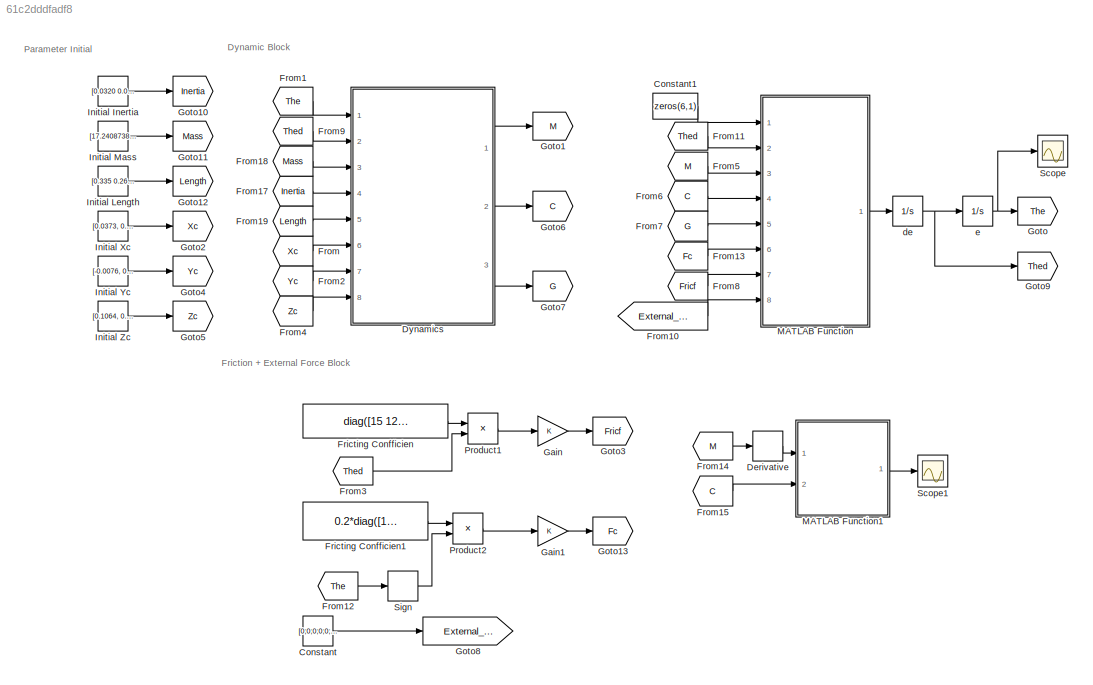
MODEL slx_61c2dddfadf8
KIND model
CONFIG AbsTol = auto
CONFIG EnableMultiTasking = off
CONFIG FixedStep = 0.01
CONFIG MaxStep = auto
CONFIG MinStep = auto
CONFIG RelTol = 1e-3
CONFIG SampleTimeConstraint = Unconstrained
CONFIG Solver = ode3
CONFIG SolverName = ode3
CONFIG StartTime = 0.0
CONFIG StopTime = 50
BLOCK [Constant] Constant
  Value = [0;0;0;0;0;0]
BLOCK [Constant] Constant1
  Value = zeros(6,1)
BLOCK [Derivative] Derivative
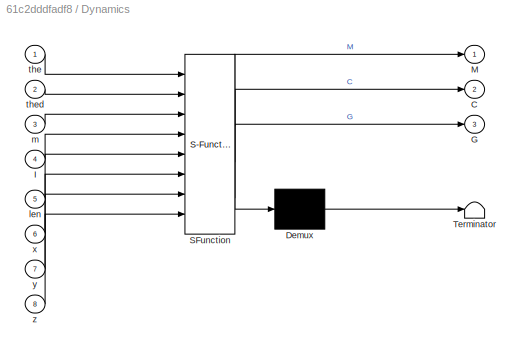
BLOCK [SubSystem] Dynamics
  ErrorFcn = Stateflow.Translate.translate
  PermitHierarchicalResolution = ExplicitOnly
  Ports = [8, 3]
  RequestExecContextInheritance = off
  SFBlockType = MATLAB Function
  TreatAsAtomicUnit = on
BLOCK [Demux] Dynamics/ Demux 
  Outputs = 1
  Ports = [1, 1]
BLOCK [S-Function] Dynamics/ SFunction 
  EnableBusSupport = on
  FunctionName = sf_sfun
  PortCounts = [8 4]
  Ports = [8, 4]
  SFcnIsStateOwnerBlock = off
  SFunctionDeploymentMode = off
  Tag = Stateflow S-Function DYN_6DOF 2
BLOCK [Terminator] Dynamics/ Terminator 
BLOCK [Outport] Dynamics/C
  IconDisplay = Port number
  Port = 2
BLOCK [Outport] Dynamics/G
  IconDisplay = Port number
  Port = 3
BLOCK [Inport] Dynamics/I
  IconDisplay = Port number
  Port = 4
BLOCK [Outport] Dynamics/M
  IconDisplay = Port number
BLOCK [Inport] Dynamics/len
  IconDisplay = Port number
  Port = 5
BLOCK [Inport] Dynamics/m
  IconDisplay = Port number
  Port = 3
BLOCK [Inport] Dynamics/the
  IconDisplay = Port number
BLOCK [Inport] Dynamics/thed
  IconDisplay = Port number
  Port = 2
BLOCK [Inport] Dynamics/x
  IconDisplay = Port number
  Port = 6
BLOCK [Inport] Dynamics/y
  IconDisplay = Port number
  Port = 7
BLOCK [Inport] Dynamics/z
  IconDisplay = Port number
  Port = 8
BLOCK [Constant] Fricting Confficien
  Value = diag([15 12 10 0.5 0.08 0.05])
BLOCK [Constant] Fricting Confficien1
  Value = 0.2*diag([1 1 1 1 1 1])
BLOCK [From] From
  GotoTag = Xc
BLOCK [From] From1
  GotoTag = The
BLOCK [From] From10
  GotoTag = External_Force
BLOCK [From] From11
  GotoTag = Thed
BLOCK [From] From12
  GotoTag = The
BLOCK [From] From13
  GotoTag = Fc
BLOCK [From] From14
  GotoTag = M
BLOCK [From] From15
  GotoTag = C
BLOCK [From] From17
  GotoTag = Inertia
BLOCK [From] From18
  GotoTag = Mass
BLOCK [From] From19
  GotoTag = Length
BLOCK [From] From2
  GotoTag = Yc
BLOCK [From] From3
  GotoTag = Thed
BLOCK [From] From4
  GotoTag = Zc
BLOCK [From] From5
  GotoTag = M
BLOCK [From] From6
  GotoTag = C
BLOCK [From] From7
  GotoTag = G
BLOCK [From] From8
  GotoTag = Fricf
BLOCK [From] From9
  GotoTag = Thed
BLOCK [Gain] Gain
  OutDataTypeStr = Inherit: Inherit via internal rule
  ParamDataTypeStr = Inherit: Inherit via internal rule
  SaturateOnIntegerOverflow = off
BLOCK [Gain] Gain1
  OutDataTypeStr = Inherit: Inherit via internal rule
  ParamDataTypeStr = Inherit: Inherit via internal rule
  SaturateOnIntegerOverflow = off
BLOCK [Goto] Goto
  GotoTag = The
BLOCK [Goto] Goto1
  GotoTag = M
BLOCK [Goto] Goto10
  GotoTag = Inertia
BLOCK [Goto] Goto11
  GotoTag = Mass
BLOCK [Goto] Goto12
  GotoTag = Length
BLOCK [Goto] Goto13
  GotoTag = Fc
BLOCK [Goto] Goto2
  GotoTag = Xc
BLOCK [Goto] Goto3
  GotoTag = Fricf
BLOCK [Goto] Goto4
  GotoTag = Yc
BLOCK [Goto] Goto5
  GotoTag = Zc
BLOCK [Goto] Goto6
  GotoTag = C
BLOCK [Goto] Goto7
  GotoTag = G
BLOCK [Goto] Goto8
  GotoTag = External_Force
BLOCK [Goto] Goto9
  GotoTag = Thed
BLOCK [Constant] Initial Inertia
  Value = [0.0320 0.0364 0.0334 0.0017 0.0018 -0.0093;\n0.0099, 0.0646, 0.0684, -0.0008, -0.0002, 0.0002; 0.0176, 0.0195, 0.024, -0.001, -0.0002, -0.0007;\n0.009 0.0081 0.0037 0 -0.0002 0;\n0.0003 0.0002 0.0003 0 0 0;\n0.00002 0.0002 0.0003 0 0 0]
BLOCK [Constant] Initial Length
  Value = [0.335 0.2695 0.0905 0.298 0.0585 0.0215 0.0695]
BLOCK [Constant] Initial Mass
  Value = [17.240873802220893 7.3398762571691067 9.1010917011561592 5.3254595389331039 1.2978324047771284 0.54]
BLOCK [Constant] Initial Xc
  Value = [0.0373, 0.1127,0.0447,0.0006,0,-0.00001]'
BLOCK [Constant] Initial Yc
  Value = [-0.0076, 0.0065, 0.0125,0.0052,0.0062,0.00001]'
BLOCK [Constant] Initial Zc
  Value = [0.1064, 0.0648, -0.0554, 0.1068, 0.0195,0.01126]'
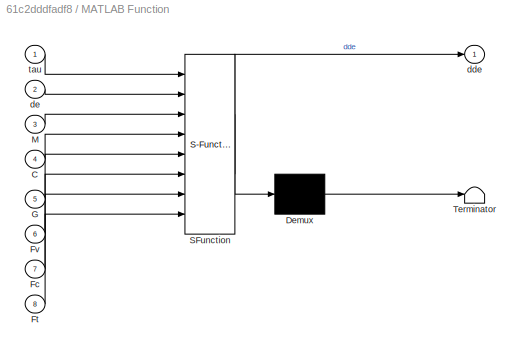
BLOCK [SubSystem] MATLAB Function
  ErrorFcn = Stateflow.Translate.translate
  PermitHierarchicalResolution = ExplicitOnly
  Ports = [8, 1]
  RequestExecContextInheritance = off
  SFBlockType = MATLAB Function
  TreatAsAtomicUnit = on
BLOCK [Demux] MATLAB Function/ Demux 
  Outputs = 1
  Ports = [1, 1]
BLOCK [S-Function] MATLAB Function/ SFunction 
  EnableBusSupport = on
  FunctionName = sf_sfun
  PortCounts = [8 2]
  Ports = [8, 2]
  SFcnIsStateOwnerBlock = off
  SFunctionDeploymentMode = off
  Tag = Stateflow S-Function DYN_6DOF 1
BLOCK [Terminator] MATLAB Function/ Terminator 
BLOCK [Inport] MATLAB Function/C
  IconDisplay = Port number
  Port = 4
BLOCK [Inport] MATLAB Function/Fc
  IconDisplay = Port number
  Port = 7
BLOCK [Inport] MATLAB Function/Ft
  IconDisplay = Port number
  Port = 8
BLOCK [Inport] MATLAB Function/Fv
  IconDisplay = Port number
  Port = 6
BLOCK [Inport] MATLAB Function/G
  IconDisplay = Port number
  Port = 5
BLOCK [Inport] MATLAB Function/M
  IconDisplay = Port number
  Port = 3
BLOCK [Outport] MATLAB Function/dde
  IconDisplay = Port number
BLOCK [Inport] MATLAB Function/de
  IconDisplay = Port number
  Port = 2
BLOCK [Inport] MATLAB Function/tau
  IconDisplay = Port number
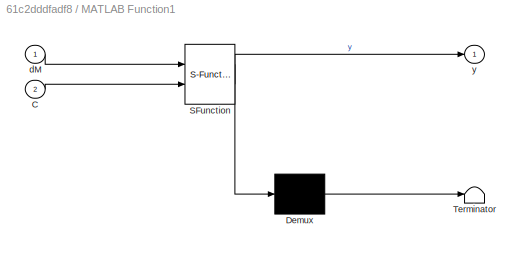
BLOCK [SubSystem] MATLAB Function1
  ErrorFcn = Stateflow.Translate.translate
  PermitHierarchicalResolution = ExplicitOnly
  Ports = [2, 1]
  RequestExecContextInheritance = off
  SFBlockType = MATLAB Function
  TreatAsAtomicUnit = on
BLOCK [Demux] MATLAB Function1/ Demux 
  Outputs = 1
  Ports = [1, 1]
BLOCK [S-Function] MATLAB Function1/ SFunction 
  EnableBusSupport = on
  FunctionName = sf_sfun
  PortCounts = [2 2]
  Ports = [2, 2]
  SFcnIsStateOwnerBlock = off
  SFunctionDeploymentMode = off
  Tag = Stateflow S-Function DYN_6DOF 3
BLOCK [Terminator] MATLAB Function1/ Terminator 
BLOCK [Inport] MATLAB Function1/C
  IconDisplay = Port number
  Port = 2
BLOCK [Inport] MATLAB Function1/dM
  IconDisplay = Port number
BLOCK [Outport] MATLAB Function1/y
  IconDisplay = Port number
BLOCK [Product] Product1
  InputSameDT = off
  Multiplication = Matrix(*)
  OutDataTypeStr = Inherit: Inherit via internal rule
  Ports = [2, 1]
  RndMeth = Floor
  SaturateOnIntegerOverflow = off
BLOCK [Product] Product2
  InputSameDT = off
  Multiplication = Matrix(*)
  OutDataTypeStr = Inherit: Inherit via internal rule
  Ports = [2, 1]
  RndMeth = Floor
  SaturateOnIntegerOverflow = off
BLOCK [Scope] Scope
  Floating = off
  NumInputPorts = 1
  Ports = [1]
  ScopeSpecificationString = Simulink.scopes.TimeScopeBlockCfg('CurrentConfiguration', extmgr.ConfigurationSet(extmgr.Configuration('Core','General UI',true,'FigureColor',[1 1 1]),extmgr.Configuration('Core','Source UI',true),extmgr.Configuration('Sources','WiredSimulink',true),extmgr.Configuration('Visuals','Time Domain',true,'SerializedDisplays',{struct('MinYLimReal','-1.8326','MaxYLimReal','0.7854','YLabelReal','','MinYLim...<+1980ch>
BLOCK [Scope] Scope1
  Floating = off
  NumInputPorts = 1
  Ports = [1]
  ScopeSpecificationString = Simulink.scopes.TimeScopeBlockCfg('CurrentConfiguration', extmgr.ConfigurationSet(extmgr.Configuration('Core','General UI',true),extmgr.Configuration('Core','Source UI',true),extmgr.Configuration('Sources','WiredSimulink',true,'DataLoggingVariableName','ScopeData1'),extmgr.Configuration('Visuals','Time Domain',true,'SerializedDisplays',{struct('MinYLimReal','-11.14276','MaxYLimReal','10.59625','YL...<+1455ch>
BLOCK [Signum] Sign
BLOCK [Integrator] de
  IgnoreLimit = on
  InitialCondition = zeros(6,1)
  Ports = [1, 1]
BLOCK [Integrator] e
  InitialCondition = [0.0001;pi/6;0.0001;0.0001;0.0001;0.0001]
  LimitOutput = on
  LowerSaturationLimit = -[170;90;90;120;60;180]*pi/180
  Ports = [1, 1]
  UpperSaturationLimit = [170;90;90;120;60;180]*pi/180
ANNOTATION (root): Dynamic Block
ANNOTATION (root): Friction + External Force Block
ANNOTATION (root): Parameter Initial
LINE Constant1:1 -> MATLAB Function:1
LINE Constant:1 -> Goto8:1
LINE Derivative:1 -> MATLAB Function1:1
LINE Dynamics:1 -> Goto1:1
LINE Dynamics:2 -> Goto6:1
LINE Dynamics:3 -> Goto7:1
LINE Fricting Confficien1:1 -> Product2:1
LINE Fricting Confficien:1 -> Product1:1
LINE From10:1 -> MATLAB Function:8
LINE From11:1 -> MATLAB Function:2
LINE From12:1 -> Sign:1
LINE From13:1 -> MATLAB Function:6
LINE From14:1 -> Derivative:1
LINE From15:1 -> MATLAB Function1:2
LINE From17:1 -> Dynamics:4
LINE From18:1 -> Dynamics:3
LINE From19:1 -> Dynamics:5
LINE From1:1 -> Dynamics:1
LINE From2:1 -> Dynamics:7
LINE From3:1 -> Product1:2
LINE From4:1 -> Dynamics:8
LINE From5:1 -> MATLAB Function:3
LINE From6:1 -> MATLAB Function:4
LINE From7:1 -> MATLAB Function:5
LINE From8:1 -> MATLAB Function:7
LINE From9:1 -> Dynamics:2
LINE From:1 -> Dynamics:6
LINE Gain1:1 -> Goto13:1
LINE Gain:1 -> Goto3:1
LINE Initial Inertia:1 -> Goto10:1
LINE Initial Length:1 -> Goto12:1
LINE Initial Mass:1 -> Goto11:1
LINE Initial Xc:1 -> Goto2:1
LINE Initial Yc:1 -> Goto4:1
LINE Initial Zc:1 -> Goto5:1
LINE MATLAB Function1:1 -> Scope1:1
LINE MATLAB Function:1 -> de:1
LINE Product1:1 -> Gain:1
LINE Product2:1 -> Gain1:1
LINE Sign:1 -> Product2:2
NET de:1 -> Goto9:1, e:1
NET e:1 -> Goto:1, Scope:1
note: NET lines group one-source signal fan-out (src -> all destinations, sorted); 1:1 wires keep LINE
CHART MATLAB Function states=1 transitions=1
  STATE_LABEL 'eML_blk_kernel()'
  STATE_LABEL 'SCRIPT:\nfunction dde= fcn(tau,de,M,C,G,Fv,Fc,Ft)\nJ = zeros(6);\n\ndde = inv(M)*(tau - C*de - G - Fv - Fc - transpose(J)*Ft);\n'
CHART Dynamics states=1 transitions=1
  STATE_LABEL 'eML_blk_kernel()'
  STATE_LABEL 'SCRIPT:\nfunction [M,C,G] = fcn(the, thed, m, I, len,x,y,z)\nthe1 = the(1); the2 = the(2); the3 = the(3);\nthe4 = the(4); the5 = the(5); the6 = the(6);\nthe1_dot = thed(1); the2_dot = thed(2); the3_dot = thed(3);\nthe4_dot = thed(4); the5_dot = thed(5); the6_dot = thed(6);\n\na1 = len(1);\na2 = len(2); a3 = len(3);\nd4 = len(4); \nd7 = len(5)+len(6); d1 = len(7); \ng = 9.81;\nm1 = m(1); \nm2 = m(2); \nm3 = m(3)...<+3608ch>'
CHART MATLAB Function1 states=1 transitions=1
  STATE_LABEL 'eML_blk_kernel()'
  STATE_LABEL "SCRIPT:\nfunction y = fcn(dM,C)\nx = [2,2,2,2,2,2]; % 1x6\ny = x*(dM-2*C)*x';\n"
